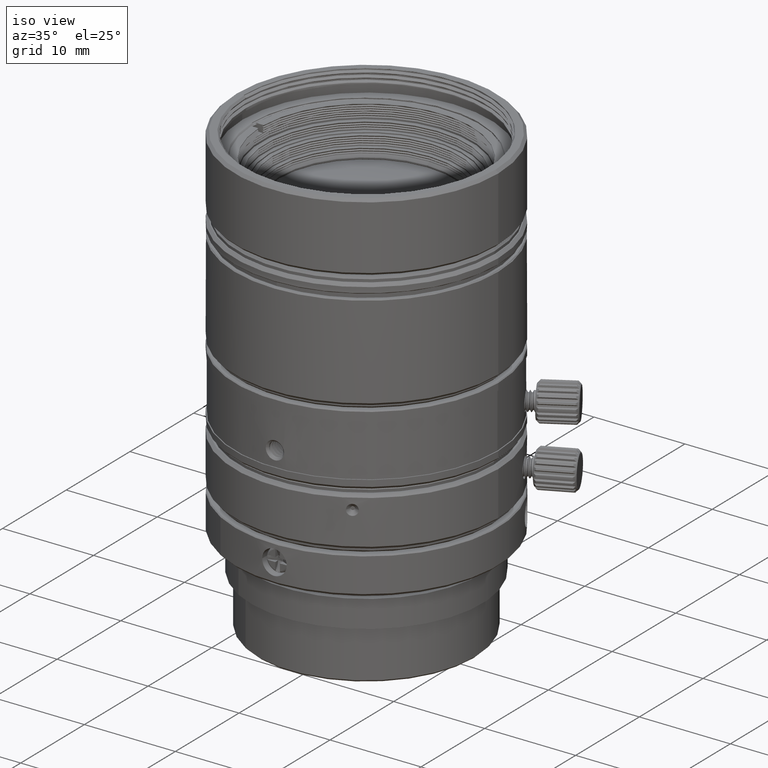
[diagram: clean part render]
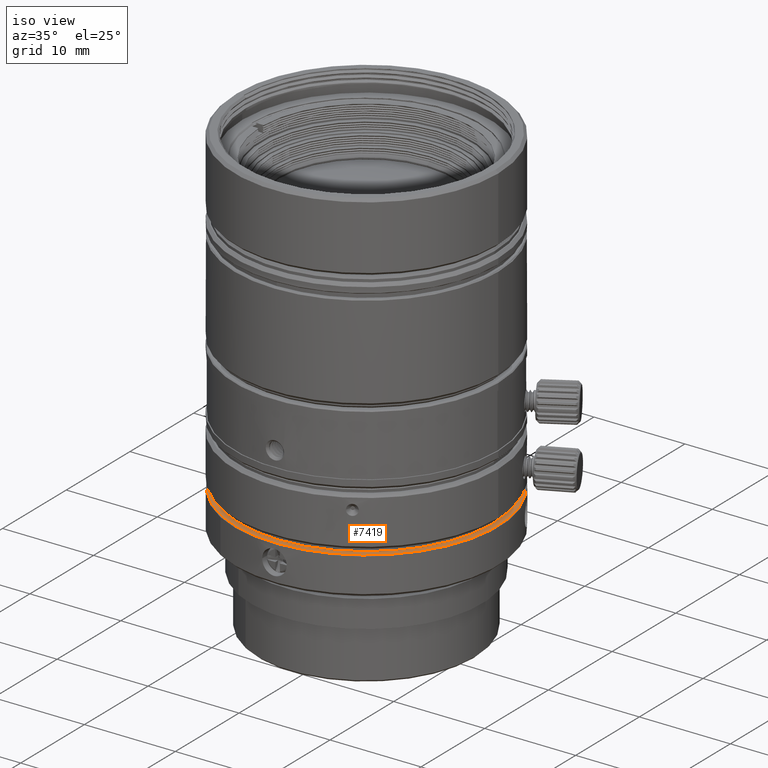
[diagram: same view with one face highlighted and labeled with its STEP entity id]
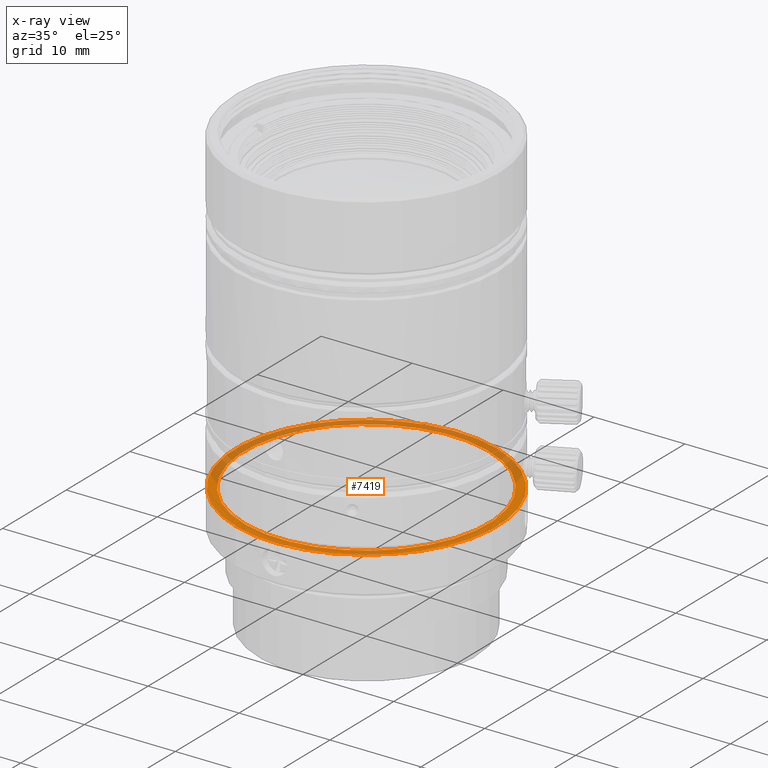
[diagram: x-ray of the same camera — body ghosted, the highlighted face saturated]
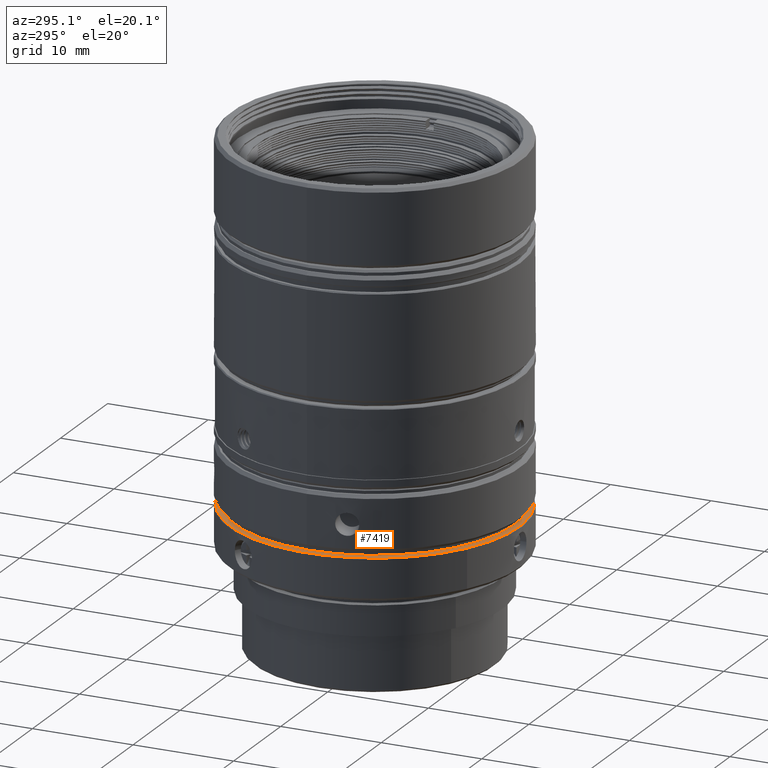
[diagram: same view with one face highlighted and labeled with its STEP entity id]
A machine part, iso view. The second image highlights one B-rep face of the part: STEP entity #7419.
The next image is the same camera in x-ray: the body ghosted, the highlighted face saturated — about 46% of this face is hidden behind the body in this view.
A second angle (auxiliary view) of the same face is appended — the face is thin or edge-on in the first view.
In plain terms, the highlighted planar face has unit normal (-0, 0, -1).
Its self-contained STEP definition (entity closure, byte-faithful):
#903 = VERTEX_POINT ( 'NONE', #51178 ) ;
#4423 = DIRECTION ( 'NONE',  ( -8.509366290503144941E-08, 2.821362897976793769E-08, -0.9999999999999960032 ) ) ;
#7112 = VERTEX_POINT ( 'NONE', #32258 ) ;
#7419 = ADVANCED_FACE ( 'NONE', ( #19023, #14948 ), #14644, .F. ) ;
#8691 = DIRECTION ( 'NONE',  ( -8.509366289908936770E-08, 2.821362899005978836E-08, -0.9999999999999960032 ) ) ;
#10115 = ORIENTED_EDGE ( 'NONE', *, *, #41388, .F. ) ;
#10195 = EDGE_CURVE ( 'NONE', #903, #50332, #58061, .T. ) ;
#10742 = ORIENTED_EDGE ( 'NONE', *, *, #54195, .F. ) ;
#11578 = EDGE_LOOP ( 'NONE', ( #10115, #25711 ) ) ;
#14644 = PLANE ( 'NONE',  #56309 ) ;
#14948 = FACE_BOUND ( 'NONE', #15179, .T. ) ;
#15179 = EDGE_LOOP ( 'NONE', ( #10742, #36467 ) ) ;
#15523 = CIRCLE ( 'NONE', #57572, 13.45000726441999461 ) ;
#15783 = DIRECTION ( 'NONE',  ( 8.509366290532915502E-08, -2.821362897925243543E-08, 0.9999999999999960032 ) ) ;
#18509 = CARTESIAN_POINT ( 'NONE',  ( 4.095536106388850070E-07, 3.625558493421660155E-07, 7.731382114322949306 ) ) ;
#18530 = DIRECTION ( 'NONE',  ( -0.5000069015829863295, -0.8660214191169763875, 1.811381172599348616E-08 ) ) ;
#19023 = FACE_OUTER_BOUND ( 'NONE', #11578, .T. ) ;
#21780 = VERTEX_POINT ( 'NONE', #49768 ) ;
#25711 = ORIENTED_EDGE ( 'NONE', *, *, #34758, .F. ) ;
#29192 = CARTESIAN_POINT ( 'NONE',  ( 6.725096868060040478, 11.64799474074479591, 7.731381870692050740 ) ) ;
#30381 = CARTESIAN_POINT ( 'NONE',  ( 4.095536106388850070E-07, 3.625558493421660155E-07, 7.731382114322949306 ) ) ;
#31021 = AXIS2_PLACEMENT_3D ( 'NONE', #33979, #15783, #43390 ) ;
#32258 = CARTESIAN_POINT ( 'NONE',  ( -7.200108401826511795, -12.47072440321653097, 7.731382375162180409 ) ) ;
#33979 = CARTESIAN_POINT ( 'NONE',  ( 4.095536106388850070E-07, 3.625558493421660155E-07, 7.731382114322949306 ) ) ;
#34758 = EDGE_CURVE ( 'NONE', #21780, #7112, #60378, .T. ) ;
#35101 = DIRECTION ( 'NONE',  ( -0.5000069015829863295, -0.8660214191169763875, 1.811381172599348616E-08 ) ) ;
#36467 = ORIENTED_EDGE ( 'NONE', *, *, #10195, .F. ) ;
#37638 = DIRECTION ( 'NONE',  ( -0.5000069015829862185, -0.8660214191169763875, 1.811381172658879151E-08 ) ) ;
#41388 = EDGE_CURVE ( 'NONE', #7112, #21780, #49874, .T. ) ;
#42367 = AXIS2_PLACEMENT_3D ( 'NONE', #30381, #54523, #35101 ) ;
#42986 = CARTESIAN_POINT ( 'NONE',  ( 4.095536106388850070E-07, 3.625558493421660155E-07, 7.731382114322949306 ) ) ;
#43390 = DIRECTION ( 'NONE',  ( -0.5000069015829862185, -0.8660214191169763875, 1.811381172658879151E-08 ) ) ;
#46874 = AXIS2_PLACEMENT_3D ( 'NONE', #42986, #4423, #18530 ) ;
#49768 = CARTESIAN_POINT ( 'NONE',  ( 7.200109220933730292, 12.47072512832822788, 7.731381853483719091 ) ) ;
#49874 = CIRCLE ( 'NONE', #46874, 14.40001885681999028 ) ;
#50332 = VERTEX_POINT ( 'NONE', #29192 ) ;
#51178 = CARTESIAN_POINT ( 'NONE',  ( -6.725096048952821093, -11.64799401563309367, 7.731382357953848761 ) ) ;
#51615 = CARTESIAN_POINT ( 'NONE',  ( 12.47071514807100101, -7.200102659479379774, 7.731380850003110261 ) ) ;
#54195 = EDGE_CURVE ( 'NONE', #50332, #903, #15523, .T. ) ;
#54523 = DIRECTION ( 'NONE',  ( -8.509366290503144941E-08, 2.821362897976793769E-08, -0.9999999999999960032 ) ) ;
#56309 = AXIS2_PLACEMENT_3D ( 'NONE', #51615, #8691, #61655 ) ;
#57572 = AXIS2_PLACEMENT_3D ( 'NONE', #18509, #57669, #37638 ) ;
#57669 = DIRECTION ( 'NONE',  ( 8.509366290532915502E-08, -2.821362897925243543E-08, 0.9999999999999960032 ) ) ;
#58061 = CIRCLE ( 'NONE', #31021, 13.45000726441999461 ) ;
#60378 = CIRCLE ( 'NONE', #42367, 14.40001885681999028 ) ;
#61655 = DIRECTION ( 'NONE',  ( -0.9999999999999963363, 0.000000000000000000, 8.509366289908939417E-08 ) ) ;